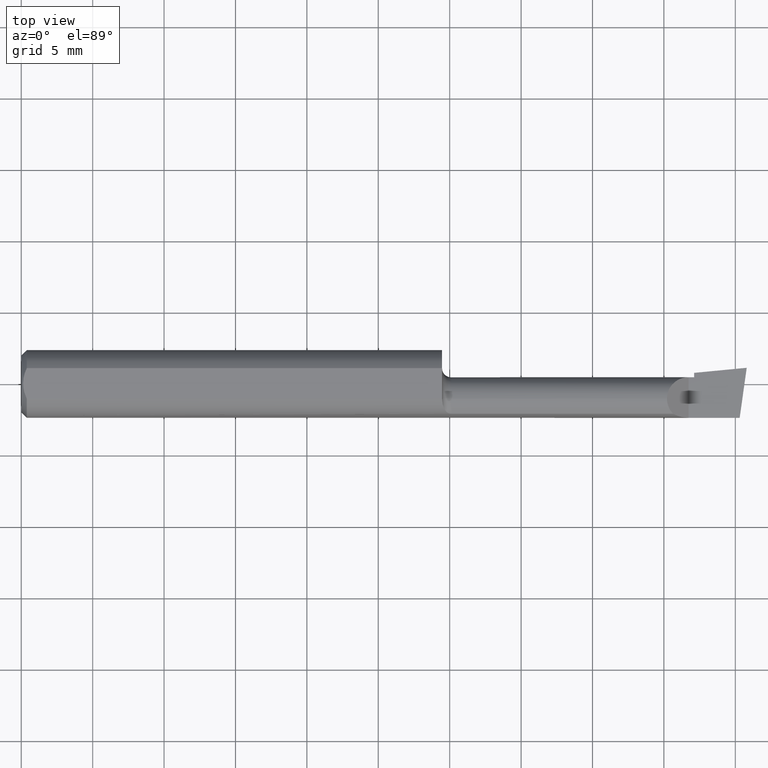
[diagram: clean part render]
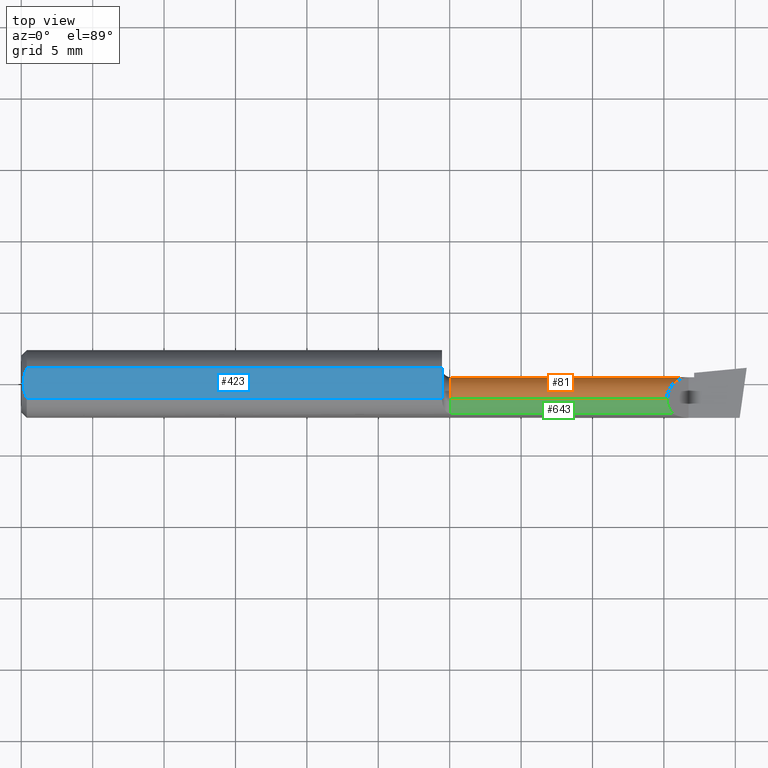
[diagram: same view with three faces highlighted in distinct colors, each labeled with its STEP entity id]
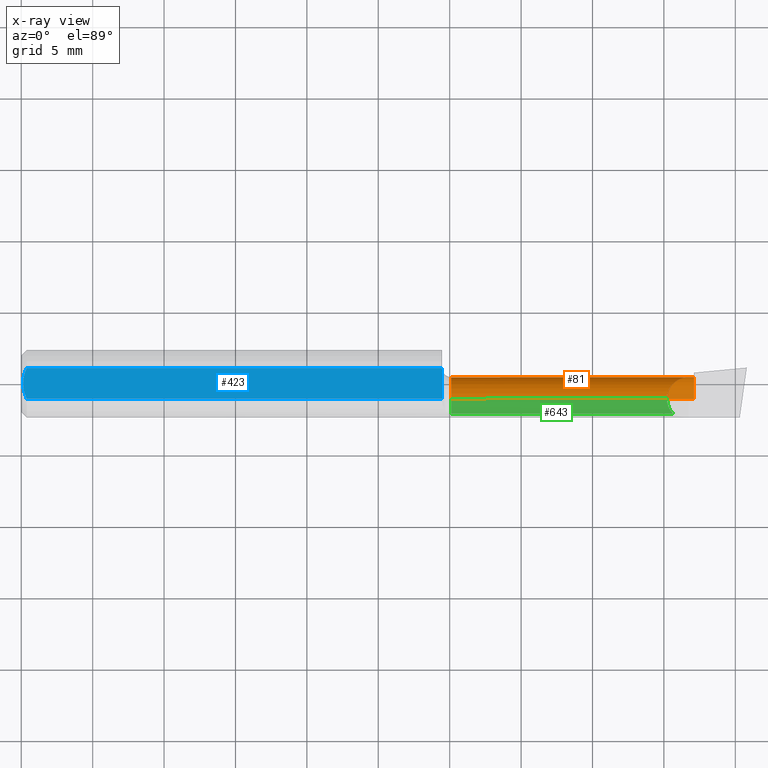
[diagram: x-ray of the same camera — body ghosted, the three highlighted faces saturated]
A machine part, top view with three faces highlighted in distinct colors.
The next image is the same camera in x-ray (body ghosted, the three faces saturated) — at least one of them is partly hidden behind the body in this view.
Their STEP definitions:

[orange] entity #81 — the highlighted cylindrical surface (edge-blend (fillet) strip) has radius 1.5215 mm, axis along (-1, -0, -0).
#7 = AXIS2_PLACEMENT_3D ( 'NONE', #139, #197, #510 ) ;
#22 = DIRECTION ( 'NONE',  ( -1.000000000000000000, -0.000000000000000000, -0.000000000000000000 ) ) ;
#51 = VERTEX_POINT ( 'NONE', #657 ) ;
#53 = EDGE_CURVE ( 'NONE', #140, #271, #631, .T. ) ;
#81 = ADVANCED_FACE ( 'NONE', ( #343 ), #203, .T. ) ;
#86 =( BOUNDED_CURVE ( )  B_SPLINE_CURVE ( 3, ( #147, #138, #94, #463 ),
 .UNSPECIFIED., .F., .F. ) 
 B_SPLINE_CURVE_WITH_KNOTS ( ( 4, 4 ),
 ( 0.000000000000000000, 1.570796326794896558 ),
 .UNSPECIFIED. ) 
 CURVE ( )  GEOMETRIC_REPRESENTATION_ITEM ( )  RATIONAL_B_SPLINE_CURVE ( ( 1.000000000000000000, 0.8047378541243649375, 0.8047378541243649375, 1.000000000000000000 ) ) 
 REPRESENTATION_ITEM ( '' )  );
#94 = CARTESIAN_POINT ( 'NONE',  ( 1.804911392386147506, 0.01839999999999995459, 0.03508860761385158150 ) ) ;
#98 = DIRECTION ( 'NONE',  ( 1.000000000000000000, 0.000000000000000000, 0.000000000000000000 ) ) ;
#119 = CARTESIAN_POINT ( 'NONE',  ( 0.000000000000000000, -0.04150000000000000216, 0.05989999999999996022 ) ) ;
#122 = CARTESIAN_POINT ( 'NONE',  ( 1.854999999999999982, -0.04150000000000000216, -0.05990000000000000185 ) ) ;
#138 = CARTESIAN_POINT ( 'NONE',  ( 1.780099999999999349, -0.006411392386148422398, 0.05989999999999994634 ) ) ;
#139 = CARTESIAN_POINT ( 'NONE',  ( 0.000000000000000000, -0.04150000000000000216, 0.000000000000000000 ) ) ;
#140 = VERTEX_POINT ( 'NONE', #673 ) ;
#147 = CARTESIAN_POINT ( 'NONE',  ( 1.780099999999999349, -0.04150000000000000216, 0.05989999999999996022 ) ) ;
#151 = ORIENTED_EDGE ( 'NONE', *, *, #399, .F. ) ;
#175 = AXIS2_PLACEMENT_3D ( 'NONE', #295, #616, #348 ) ;
#197 = DIRECTION ( 'NONE',  ( -1.000000000000000000, -0.000000000000000000, -0.000000000000000000 ) ) ;
#203 = CYLINDRICAL_SURFACE ( 'NONE', #7, 0.05989999999999996022 ) ;
#217 = CARTESIAN_POINT ( 'NONE',  ( 0.000000000000000000, -0.04149999999999999523, -0.05989999999999996022 ) ) ;
#218 = ORIENTED_EDGE ( 'NONE', *, *, #518, .T. ) ;
#228 = ORIENTED_EDGE ( 'NONE', *, *, #53, .F. ) ;
#239 = CARTESIAN_POINT ( 'NONE',  ( 1.854999999999999982, 0.01839999999999999969, 1.030335658007946834E-15 ) ) ;
#249 = CARTESIAN_POINT ( 'NONE',  ( 5.659797890829555466E-31, 0.01839999999999994765, 1.030335658007946046E-15 ) ) ;
#268 = ORIENTED_EDGE ( 'NONE', *, *, #481, .T. ) ;
#271 = VERTEX_POINT ( 'NONE', #670 ) ;
#295 = CARTESIAN_POINT ( 'NONE',  ( 1.185000000000000053, -0.04150000000000000216, 0.000000000000000000 ) ) ;
#302 = LINE ( 'NONE', #249, #647 ) ;
#308 = DIRECTION ( 'NONE',  ( 0.000000000000000000, 0.000000000000000000, 1.000000000000000000 ) ) ;
#343 = FACE_OUTER_BOUND ( 'NONE', #612, .T. ) ;
#348 = DIRECTION ( 'NONE',  ( 0.000000000000000000, 0.000000000000000000, 1.000000000000000000 ) ) ;
#355 = CARTESIAN_POINT ( 'NONE',  ( 1.854999999999999982, -0.04150000000000000216, 0.000000000000000000 ) ) ;
#358 = VERTEX_POINT ( 'NONE', #122 ) ;
#378 = VERTEX_POINT ( 'NONE', #239 ) ;
#387 = ORIENTED_EDGE ( 'NONE', *, *, #613, .T. ) ;
#399 = EDGE_CURVE ( 'NONE', #51, #140, #552, .T. ) ;
#436 = VECTOR ( 'NONE', #22, 39.37007874015748143 ) ;
#463 = CARTESIAN_POINT ( 'NONE',  ( 1.840000000000000080, 0.01839999999999986438, 1.959434878635762025E-17 ) ) ;
#481 = EDGE_CURVE ( 'NONE', #526, #378, #302, .T. ) ;
#510 = DIRECTION ( 'NONE',  ( 0.000000000000000000, 0.000000000000000000, 1.000000000000000000 ) ) ;
#518 = EDGE_CURVE ( 'NONE', #51, #526, #86, .T. ) ;
#526 = VERTEX_POINT ( 'NONE', #571 ) ;
#527 = EDGE_CURVE ( 'NONE', #378, #358, #633, .T. ) ;
#530 = VECTOR ( 'NONE', #686, 39.37007874015748143 ) ;
#548 = ORIENTED_EDGE ( 'NONE', *, *, #527, .T. ) ;
#552 = LINE ( 'NONE', #119, #436 ) ;
#571 = CARTESIAN_POINT ( 'NONE',  ( 1.840000000000000080, 0.01839999999999986438, 1.959434878635762025E-17 ) ) ;
#612 = EDGE_LOOP ( 'NONE', ( #548, #387, #228, #151, #218, #268 ) ) ;
#613 = EDGE_CURVE ( 'NONE', #358, #271, #637, .T. ) ;
#616 = DIRECTION ( 'NONE',  ( -1.000000000000000000, -0.000000000000000000, -0.000000000000000000 ) ) ;
#622 = AXIS2_PLACEMENT_3D ( 'NONE', #355, #661, #308 ) ;
#631 = CIRCLE ( 'NONE', #175, 0.05989999999999991859 ) ;
#633 = CIRCLE ( 'NONE', #622, 0.05990000000000000185 ) ;
#637 = LINE ( 'NONE', #217, #530 ) ;
#647 = VECTOR ( 'NONE', #98, 39.37007874015748143 ) ;
#657 = CARTESIAN_POINT ( 'NONE',  ( 1.780099999999999349, -0.04150000000000000216, 0.05989999999999996022 ) ) ;
#661 = DIRECTION ( 'NONE',  ( -1.000000000000000000, -0.000000000000000000, -0.000000000000000000 ) ) ;
#670 = CARTESIAN_POINT ( 'NONE',  ( 1.185000000000000053, -0.04149999999999999523, -0.05989999999999991859 ) ) ;
#673 = CARTESIAN_POINT ( 'NONE',  ( 1.185000000000000053, -0.04150000000000000216, 0.05989999999999991859 ) ) ;
#686 = DIRECTION ( 'NONE',  ( -1.000000000000000000, -0.000000000000000000, -0.000000000000000000 ) ) ;

[blue] entity #423 — the highlighted planar face has unit normal (0, -0, -1).
#18 = CARTESIAN_POINT ( 'NONE',  ( 0.01499999999999999598, 0.04209513035969837669, 0.08360000000000000764 ) ) ;
#28 = CARTESIAN_POINT ( 'NONE',  ( 0.005981829149300843529, 0.01454044632356567453, 0.08360000000000003539 ) ) ;
#35 = CARTESIAN_POINT ( 'NONE',  ( 2.000000000000000000, 0.1436000000000000332, 0.08359999999999999376 ) ) ;
#50 = AXIS2_PLACEMENT_3D ( 'NONE', #35, #561, #82 ) ;
#55 = EDGE_CURVE ( 'NONE', #437, #596, #473, .T. ) ;
#70 = VERTEX_POINT ( 'NONE', #74 ) ;
#74 = CARTESIAN_POINT ( 'NONE',  ( 1.160033712670299977, -0.04209513036081732190, 0.08360000000000000764 ) ) ;
#77 = CARTESIAN_POINT ( 'NONE',  ( 0.01499999999999999944, -0.04209513035969835587, 0.08360000000000000764 ) ) ;
#78 = ORIENTED_EDGE ( 'NONE', *, *, #327, .F. ) ;
#82 = DIRECTION ( 'NONE',  ( 0.000000000000000000, 1.000000000000000000, -1.189000693621284344E-16 ) ) ;
#105 = EDGE_CURVE ( 'NONE', #596, #371, #198, .T. ) ;
#108 = CARTESIAN_POINT ( 'NONE',  ( 1.160000000000000142, 0.1436000000000000332, 0.08359999999999999376 ) ) ;
#161 = CARTESIAN_POINT ( 'NONE',  ( 1.160010473476444259, -0.03163306423249848121, 0.08360000000000000764 ) ) ;
#163 = B_SPLINE_CURVE_WITH_KNOTS ( 'NONE', 3,
 ( #472, #682, #161, #321, #581, #438 ),
 .UNSPECIFIED., .F., .F.,
 ( 4, 2, 4 ),
 ( 0.0007618363005527917491, 0.0009495817850258247419, 0.001137327269498857735 ),
 .UNSPECIFIED. ) ;
#165 = DIRECTION ( 'NONE',  ( 0.000000000000000000, -1.000000000000000000, 1.189000693621284344E-16 ) ) ;
#187 = LINE ( 'NONE', #292, #459 ) ;
#194 = CARTESIAN_POINT ( 'NONE',  ( 0.005000000000000227353, -0.007328888879231044290, 0.08360000000000000764 ) ) ;
#196 = PLANE ( 'NONE',  #50 ) ;
#198 = B_SPLINE_CURVE_WITH_KNOTS ( 'NONE', 3,
 ( #300, #511, #28, #454, #250, #464 ),
 .UNSPECIFIED., .F., .F.,
 ( 4, 2, 4 ),
 ( 0.006881281100865560205, 0.007427683811376459971, 0.007974086521887359738 ),
 .UNSPECIFIED. ) ;
#201 = CARTESIAN_POINT ( 'NONE',  ( 1.160033822879743992, -0.04150000000000000216, 0.08360000000000000764 ) ) ;
#204 = CARTESIAN_POINT ( 'NONE',  ( 1.160033822879743992, -0.04159918775988086237, 0.08360000000000000764 ) ) ;
#207 = VERTEX_POINT ( 'NONE', #213 ) ;
#208 = CARTESIAN_POINT ( 'NONE',  ( 0.01499999999999999944, -0.04209513035969835587, 0.08360000000000000764 ) ) ;
#212 = VECTOR ( 'NONE', #533, 39.37007874015748143 ) ;
#213 = CARTESIAN_POINT ( 'NONE',  ( 1.160000000000000142, 0.04209513035969836975, 0.08360000000000000764 ) ) ;
#216 = ORIENTED_EDGE ( 'NONE', *, *, #615, .F. ) ;
#230 = FACE_OUTER_BOUND ( 'NONE', #506, .T. ) ;
#250 = CARTESIAN_POINT ( 'NONE',  ( 0.01203648650249651043, 0.03550565407121124978, 0.08360000000000000764 ) ) ;
#262 = ORIENTED_EDGE ( 'NONE', *, *, #55, .F. ) ;
#272 = ORIENTED_EDGE ( 'NONE', *, *, #645, .F. ) ;
#273 = LINE ( 'NONE', #108, #322 ) ;
#292 = CARTESIAN_POINT ( 'NONE',  ( 0.000000000000000000, 0.04209513035969837669, 0.08360000000000000764 ) ) ;
#300 = CARTESIAN_POINT ( 'NONE',  ( 0.005000000000000236026, 1.025183009042025117E-17, 0.08360000000000000764 ) ) ;
#310 = VERTEX_POINT ( 'NONE', #444 ) ;
#316 = B_SPLINE_CURVE_WITH_KNOTS ( 'NONE', 3,
 ( #201, #204, #605, #620, #567 ),
 .UNSPECIFIED., .F., .F.,
 ( 4, 1, 4 ),
 ( 0.001137327269498857735, 0.001144877036812689923, 0.001152426804126521894 ),
 .UNSPECIFIED. ) ;
#321 = CARTESIAN_POINT ( 'NONE',  ( 1.160027419345087463, -0.03656676420729543242, 0.08359999999999997988 ) ) ;
#322 = VECTOR ( 'NONE', #165, 39.37007874015748143 ) ;
#327 = EDGE_CURVE ( 'NONE', #371, #207, #187, .T. ) ;
#341 = CARTESIAN_POINT ( 'NONE',  ( 1.160000000000000142, -0.02669966216601849310, 0.08360000000000000764 ) ) ;
#371 = VERTEX_POINT ( 'NONE', #18 ) ;
#379 = CARTESIAN_POINT ( 'NONE',  ( 0.000000000000000000, -0.04209513035969835587, 0.08360000000000000764 ) ) ;
#391 = ORIENTED_EDGE ( 'NONE', *, *, #105, .F. ) ;
#415 = VERTEX_POINT ( 'NONE', #341 ) ;
#423 = ADVANCED_FACE ( 'NONE', ( #230 ), #196, .F. ) ;
#427 = LINE ( 'NONE', #379, #212 ) ;
#432 = ORIENTED_EDGE ( 'NONE', *, *, #575, .F. ) ;
#434 = ORIENTED_EDGE ( 'NONE', *, *, #453, .F. ) ;
#437 = VERTEX_POINT ( 'NONE', #208 ) ;
#438 = CARTESIAN_POINT ( 'NONE',  ( 1.160033822879743992, -0.04150000000000000216, 0.08360000000000000764 ) ) ;
#444 = CARTESIAN_POINT ( 'NONE',  ( 1.160033822879743992, -0.04150000000000000216, 0.08360000000000000764 ) ) ;
#453 = EDGE_CURVE ( 'NONE', #310, #70, #316, .T. ) ;
#454 = CARTESIAN_POINT ( 'NONE',  ( 0.009492654797564338900, 0.02859466010166627700, 0.08360000000000000764 ) ) ;
#459 = VECTOR ( 'NONE', #555, 39.37007874015748143 ) ;
#460 = CARTESIAN_POINT ( 'NONE',  ( 0.009539353699420828961, -0.02875682547511369466, 0.08360000000000000764 ) ) ;
#464 = CARTESIAN_POINT ( 'NONE',  ( 0.01499999999999999598, 0.04209513035969837669, 0.08360000000000000764 ) ) ;
#472 = CARTESIAN_POINT ( 'NONE',  ( 1.160000000000000142, -0.02669966216601849310, 0.08360000000000000764 ) ) ;
#473 = B_SPLINE_CURVE_WITH_KNOTS ( 'NONE', 3,
 ( #77, #606, #460, #654, #194, #667 ),
 .UNSPECIFIED., .F., .F.,
 ( 4, 2, 4 ),
 ( 0.005785415439423114564, 0.006333348270144337384, 0.006881281100865560205 ),
 .UNSPECIFIED. ) ;
#506 = EDGE_LOOP ( 'NONE', ( #432, #216, #78, #391, #262, #272, #434 ) ) ;
#511 = CARTESIAN_POINT ( 'NONE',  ( 0.005000000000000225618, 0.007308422719211825694, 0.08360000000000000764 ) ) ;
#531 = CARTESIAN_POINT ( 'NONE',  ( 0.005000000000000236026, 1.025183009042025117E-17, 0.08360000000000000764 ) ) ;
#533 = DIRECTION ( 'NONE',  ( -1.000000000000000000, -0.000000000000000000, -0.000000000000000000 ) ) ;
#555 = DIRECTION ( 'NONE',  ( 1.000000000000000000, 0.000000000000000000, 0.000000000000000000 ) ) ;
#561 = DIRECTION ( 'NONE',  ( 0.000000000000000000, -1.189000693621284344E-16, -1.000000000000000000 ) ) ;
#567 = CARTESIAN_POINT ( 'NONE',  ( 1.160033712670299977, -0.04209513036081732190, 0.08360000000000000764 ) ) ;
#575 = EDGE_CURVE ( 'NONE', #415, #310, #163, .T. ) ;
#581 = CARTESIAN_POINT ( 'NONE',  ( 1.160033822879743992, -0.03903342675892667452, 0.08360000000000000764 ) ) ;
#596 = VERTEX_POINT ( 'NONE', #531 ) ;
#605 = CARTESIAN_POINT ( 'NONE',  ( 1.160033804492674347, -0.04179756391388078640, 0.08360000000000000764 ) ) ;
#606 = CARTESIAN_POINT ( 'NONE',  ( 0.01206089165507025218, -0.03555991978469313225, 0.08360000000000000764 ) ) ;
#615 = EDGE_CURVE ( 'NONE', #207, #415, #273, .T. ) ;
#620 = CARTESIAN_POINT ( 'NONE',  ( 1.160033749376515377, -0.04199594133480310382, 0.08360000000000003539 ) ) ;
#645 = EDGE_CURVE ( 'NONE', #70, #437, #427, .T. ) ;
#654 = CARTESIAN_POINT ( 'NONE',  ( 0.005975039161239529238, -0.01453776427033147065, 0.08359999999999997988 ) ) ;
#667 = CARTESIAN_POINT ( 'NONE',  ( 0.005000000000000236026, 1.025183009042025117E-17, 0.08360000000000000764 ) ) ;
#682 = CARTESIAN_POINT ( 'NONE',  ( 1.159999999999999920, -0.02916612216505935426, 0.08360000000000000764 ) ) ;

[green] entity #643 — the highlighted cylindrical surface (edge-blend (fillet) strip) has radius 1.5215 mm, axis along (-1, -0, -0).
#1 = CARTESIAN_POINT ( 'NONE',  ( 1.520000000000000240, -0.08307469879518081246, 0.04312255117789283443 ) ) ;
#22 = DIRECTION ( 'NONE',  ( -1.000000000000000000, -0.000000000000000000, -0.000000000000000000 ) ) ;
#42 = EDGE_CURVE ( 'NONE', #532, #51, #377, .T. ) ;
#47 = FACE_OUTER_BOUND ( 'NONE', #281, .T. ) ;
#51 = VERTEX_POINT ( 'NONE', #657 ) ;
#62 = DIRECTION ( 'NONE',  ( 0.000000000000000000, 0.000000000000000000, 1.000000000000000000 ) ) ;
#80 = CARTESIAN_POINT ( 'NONE',  ( 1.780099999999999349, -0.04150000000000000216, 0.05989999999999996022 ) ) ;
#102 = VERTEX_POINT ( 'NONE', #611 ) ;
#119 = CARTESIAN_POINT ( 'NONE',  ( 0.000000000000000000, -0.04150000000000000216, 0.05989999999999996022 ) ) ;
#128 = AXIS2_PLACEMENT_3D ( 'NONE', #169, #574, #324 ) ;
#140 = VERTEX_POINT ( 'NONE', #673 ) ;
#169 = CARTESIAN_POINT ( 'NONE',  ( 0.000000000000000000, -0.04150000000000000216, 0.000000000000000000 ) ) ;
#243 = CARTESIAN_POINT ( 'NONE',  ( 1.780099999999999127, -0.05720488466914008113, 0.05989999999999996022 ) ) ;
#248 = VECTOR ( 'NONE', #442, 39.37007874015748143 ) ;
#254 = EDGE_CURVE ( 'NONE', #102, #140, #306, .T. ) ;
#257 = EDGE_CURVE ( 'NONE', #102, #532, #490, .T. ) ;
#261 = DIRECTION ( 'NONE',  ( -1.000000000000000000, -0.000000000000000000, -0.000000000000000000 ) ) ;
#281 = EDGE_LOOP ( 'NONE', ( #478, #430, #679, #314 ) ) ;
#306 = CIRCLE ( 'NONE', #408, 0.05989999999999991859 ) ;
#314 = ORIENTED_EDGE ( 'NONE', *, *, #257, .T. ) ;
#324 = DIRECTION ( 'NONE',  ( 0.000000000000000000, 0.000000000000000000, 1.000000000000000000 ) ) ;
#377 =( BOUNDED_CURVE ( )  B_SPLINE_CURVE ( 3, ( #462, #405, #243, #80 ),
 .UNSPECIFIED., .F., .F. ) 
 B_SPLINE_CURVE_WITH_KNOTS ( ( 4, 4 ),
 ( 5.516060229395656656, 6.283185307179586232 ),
 .UNSPECIFIED. ) 
 CURVE ( )  GEOMETRIC_REPRESENTATION_ITEM ( )  RATIONAL_B_SPLINE_CURVE ( ( 1.000000000000000000, 0.9515582177473687064, 0.9515582177473687064, 1.000000000000000000 ) ) 
 REPRESENTATION_ITEM ( '' )  );
#385 = CYLINDRICAL_SURFACE ( 'NONE', #128, 0.05989999999999996022 ) ;
#399 = EDGE_CURVE ( 'NONE', #51, #140, #552, .T. ) ;
#405 = CARTESIAN_POINT ( 'NONE',  ( 1.785977184218891400, -0.07176861043311237587, 0.05402281578110738197 ) ) ;
#408 = AXIS2_PLACEMENT_3D ( 'NONE', #542, #261, #62 ) ;
#430 = ORIENTED_EDGE ( 'NONE', *, *, #399, .T. ) ;
#436 = VECTOR ( 'NONE', #22, 39.37007874015748143 ) ;
#442 = DIRECTION ( 'NONE',  ( 1.000000000000000000, 0.000000000000000000, 0.000000000000000000 ) ) ;
#462 = CARTESIAN_POINT ( 'NONE',  ( 1.796877448822106649, -0.08307469879518082634, 0.04312255117789279973 ) ) ;
#478 = ORIENTED_EDGE ( 'NONE', *, *, #42, .T. ) ;
#490 = LINE ( 'NONE', #1, #248 ) ;
#519 = CARTESIAN_POINT ( 'NONE',  ( 1.796877448822106649, -0.08307469879518082634, 0.04312255117789279973 ) ) ;
#532 = VERTEX_POINT ( 'NONE', #519 ) ;
#542 = CARTESIAN_POINT ( 'NONE',  ( 1.185000000000000053, -0.04150000000000000216, 0.000000000000000000 ) ) ;
#552 = LINE ( 'NONE', #119, #436 ) ;
#574 = DIRECTION ( 'NONE',  ( -1.000000000000000000, -0.000000000000000000, -0.000000000000000000 ) ) ;
#611 = CARTESIAN_POINT ( 'NONE',  ( 1.185000000000000053, -0.08307469879518036837, 0.04312255117789319525 ) ) ;
#643 = ADVANCED_FACE ( 'NONE', ( #47 ), #385, .T. ) ;
#657 = CARTESIAN_POINT ( 'NONE',  ( 1.780099999999999349, -0.04150000000000000216, 0.05989999999999996022 ) ) ;
#673 = CARTESIAN_POINT ( 'NONE',  ( 1.185000000000000053, -0.04150000000000000216, 0.05989999999999991859 ) ) ;
#679 = ORIENTED_EDGE ( 'NONE', *, *, #254, .F. ) ;